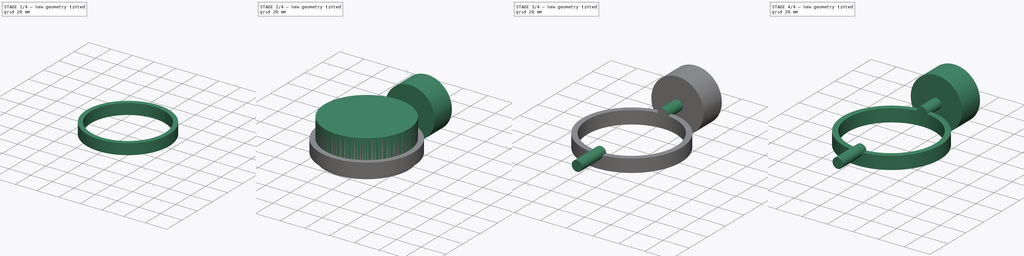
[diagram: build sequence overview — one tinted view per stage of 4, left to right]
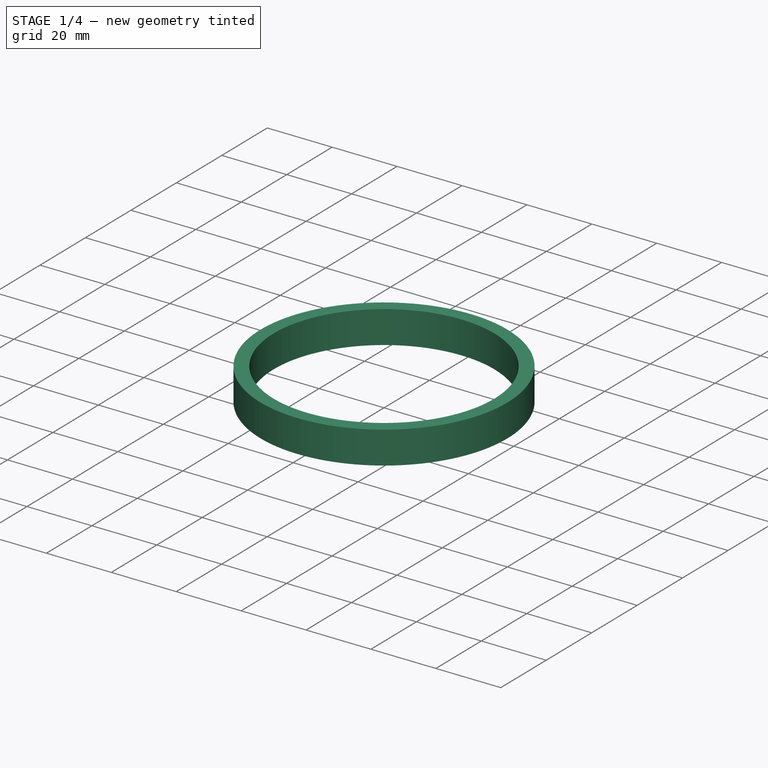
[diagram: stage 1 of 4 — iso view after this stage's code; geometry added in this stage tinted green]
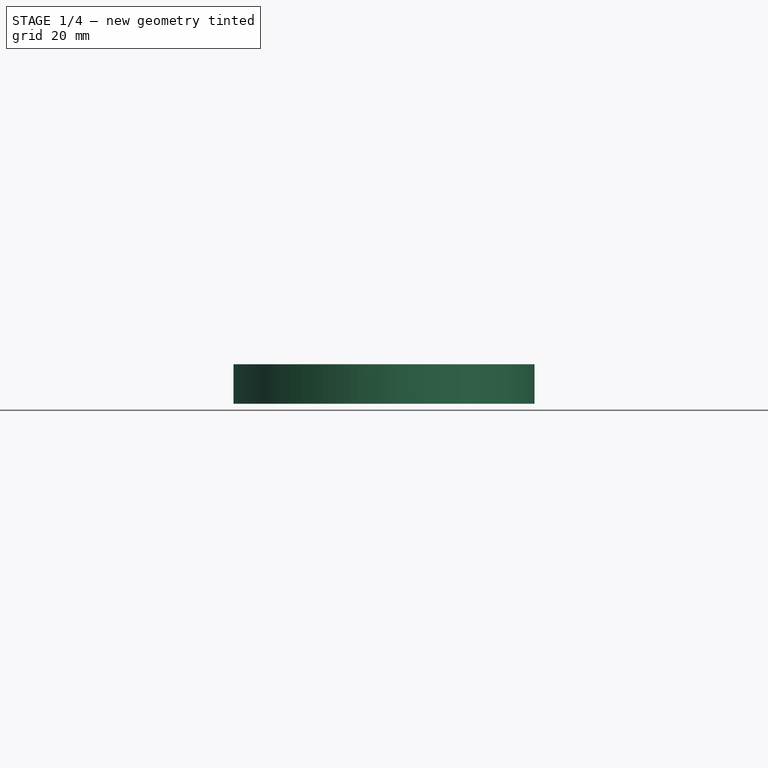
[diagram: stage 1 of 4 — front view after this stage's code; geometry added in this stage tinted green]
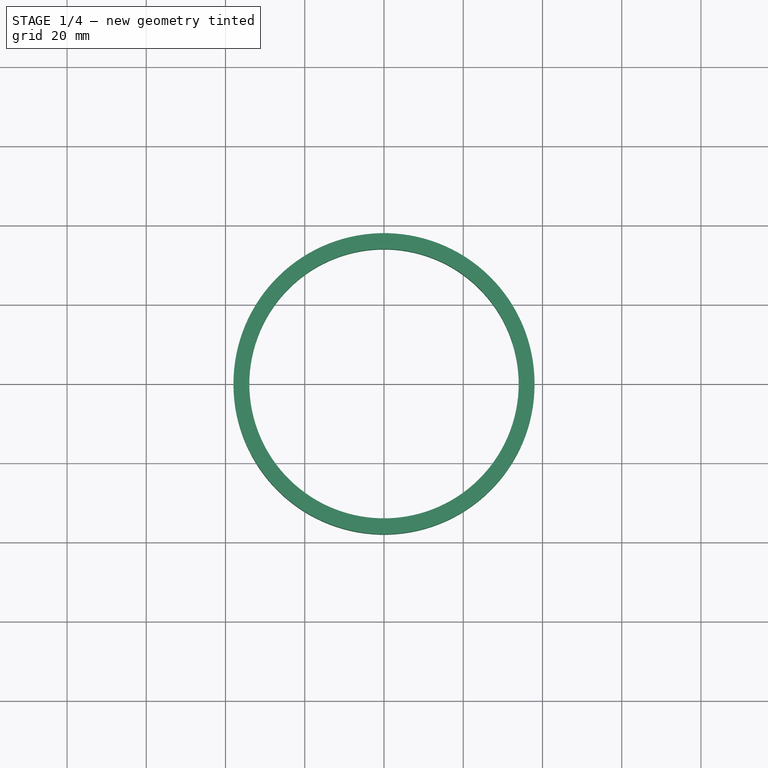
[diagram: stage 1 of 4 — top view after this stage's code; geometry added in this stage tinted green]
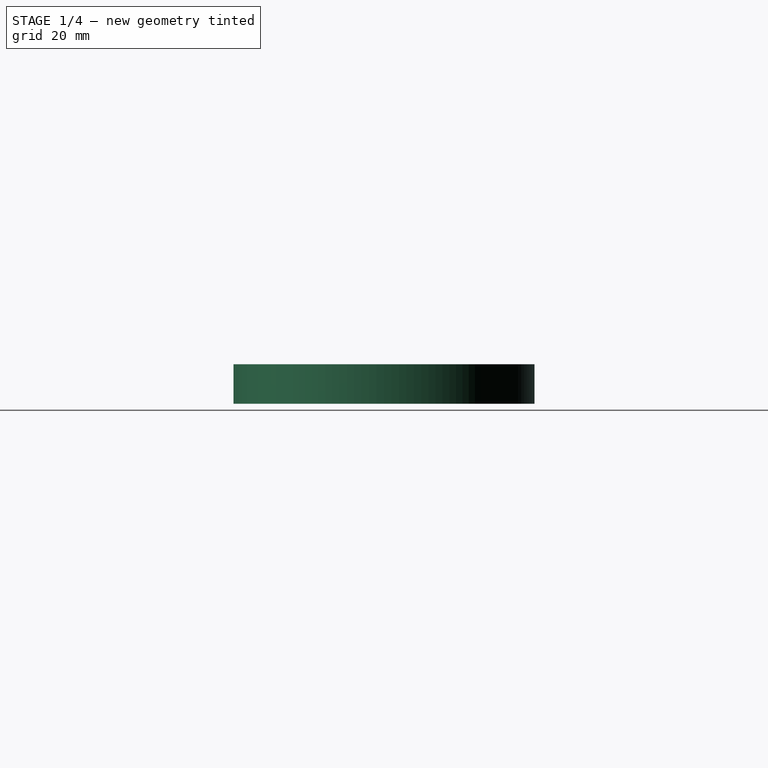
[diagram: stage 1 of 4 — right view after this stage's code; geometry added in this stage tinted green]
FCSTD DOCUMENT  (FreeCAD 0.20R29177 +233 (Git))
Label: v2-proyecto-cupholder-1-anillo
License: Creative Commons Attribution-ShareAlike
LicenseURL: http://creativecommons.org/licenses/by-sa/4.0/
objects: Part::Cylinder×4, Part::Cut×3, Part::MultiFuse×2, Sketcher::SketchObject×1, PartDesign::Body×1, Part::Revolution×1, Part::Feature×1, Part::Extrusion×1
note: 14 computed .brp shape members not serialized (recipe doc carries the construction recipe); baked Part::Feature solids carry a one-line shape summary decoded from their .brp

FEATURE [Sketcher::SketchObject] Sketch
  FullyConstrained = true
  MapMode = 5
  Placement = pos=(0,0,0) rot=(1,0,0;1.5708rad)
  Support = -> [XZ_Plane]
  sketch-geometry (6):
    g0: LineSegment StartX=0 StartY=1 StartZ=0 EndX=34 EndY=1 EndZ=0
    g1: LineSegment StartX=34 StartY=1 StartZ=0 EndX=34 EndY=70 EndZ=0
    g2: LineSegment StartX=34 StartY=70 StartZ=0 EndX=38 EndY=70 EndZ=0
    g3: LineSegment StartX=38 StartY=70 StartZ=0 EndX=38 EndY=0 EndZ=0
    g4: LineSegment StartX=38 StartY=0 StartZ=0 EndX=0 EndY=0 EndZ=0
    g5: LineSegment StartX=0 StartY=0 StartZ=0 EndX=0 EndY=1 EndZ=0
  constraints (17):
    c: PointOnObject(g0,g-2)
    c: Horizontal(g0)
    c: Coincident(g0,g1)
    c: Coincident(g1,g2)
    c: Horizontal(g2)
    c: Coincident(g2,g3)
    c: Coincident(g3,g4)
    c: Horizontal(g4)
    c: Coincident(g4,g5)
    c: Coincident(g5,g0)
    c: DistanceY(g5,g5) = 1
    c: Coincident(g4,g-1)
    c: DistanceX(g0,g0) = 34
    c: DistanceX(g4,g4) = 38
    c: Parallel(g1,g3)
    c: DistanceX(g-1,g1) = 34
    c: DistanceY(g-1,g2) = 70
FEATURE [PartDesign::Body] Body  label="vaso"
  Group = -> [Sketch]
  Origin = -> Origin
FEATURE [Part::Revolution] Revolve
  Angle = 360
  Axis = (0,0,1)
  Base = (0,0,0)
  FaceMakerClass = Part::FaceMakerBullseye
  Solid = true
  Source = -> Sketch
  Symmetric = false
FEATURE [Part::Cylinder] Cylinder
  Angle = 360
  AttacherType = Attacher::AttachEngine3D
  FirstAngle = 0
  Height = 60
  Radius = 46
  SecondAngle = 0
FEATURE [Part::Cut] Cut002
  Base = -> Revolve
  Refine = true
  Tool = -> Cylinder
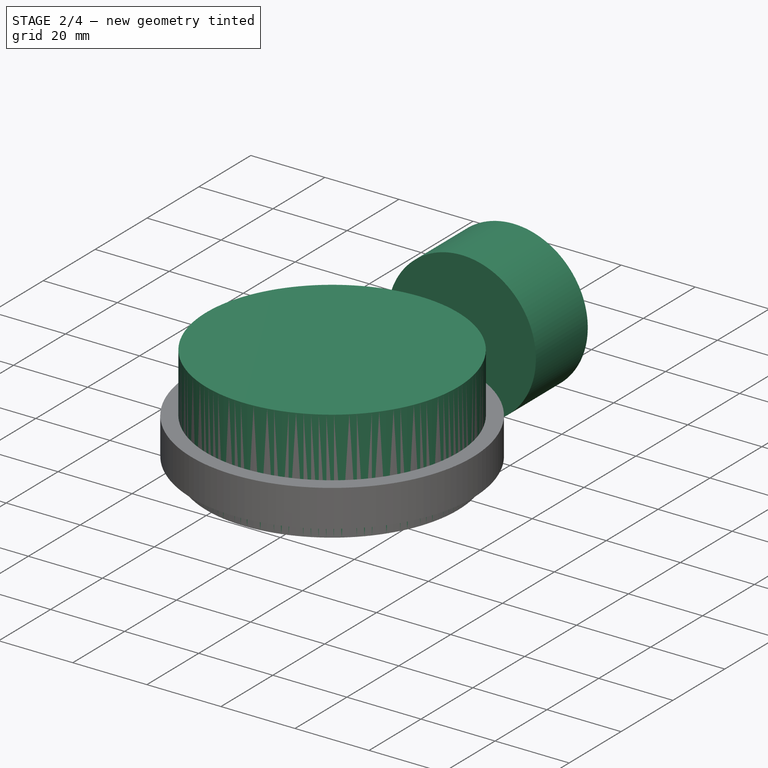
[diagram: stage 2 of 4 — iso view after this stage's code; geometry added in this stage tinted green]
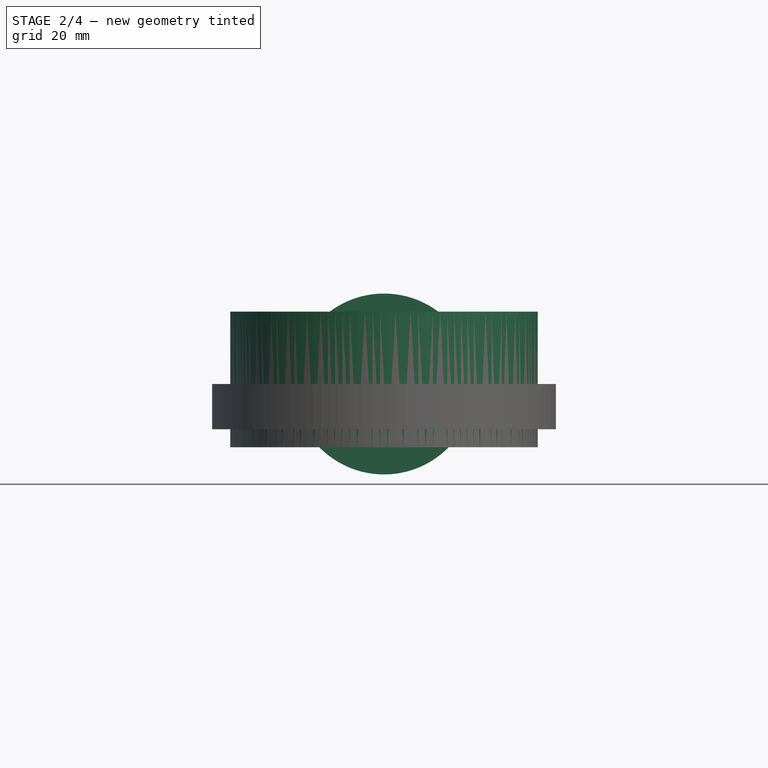
[diagram: stage 2 of 4 — front view after this stage's code; geometry added in this stage tinted green]
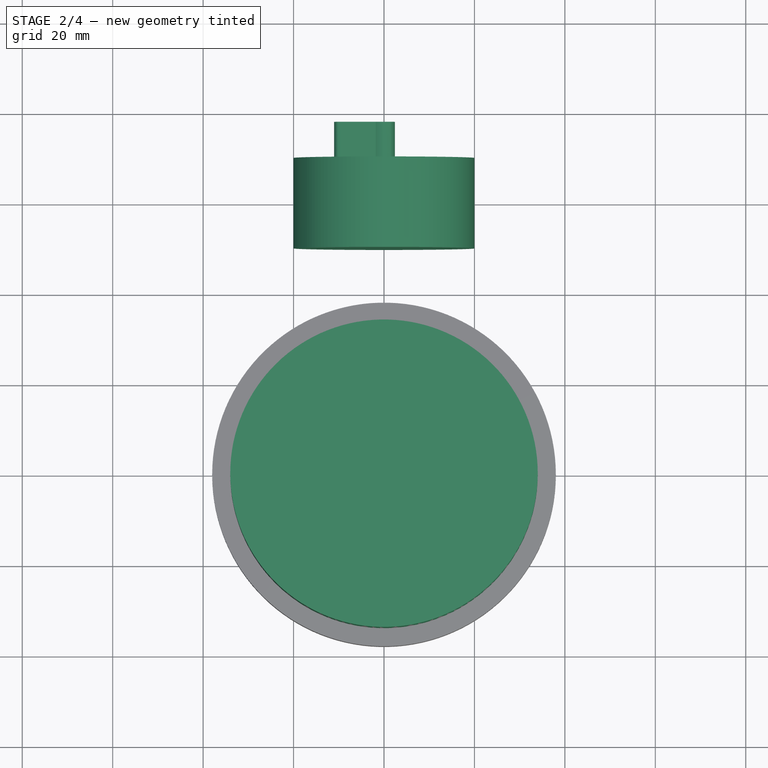
[diagram: stage 2 of 4 — top view after this stage's code; geometry added in this stage tinted green]
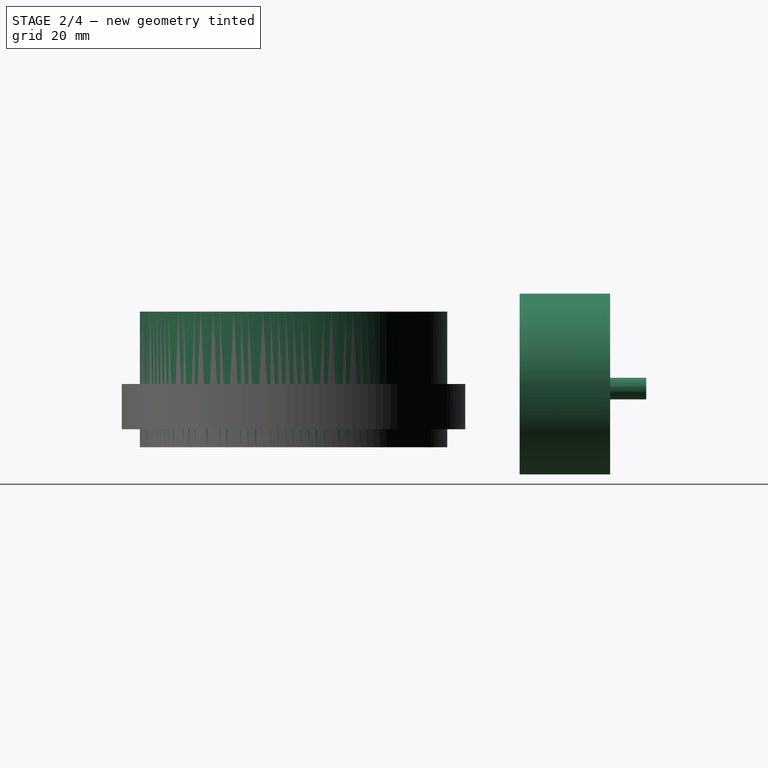
[diagram: stage 2 of 4 — right view after this stage's code; geometry added in this stage tinted green]
FEATURE [Part::Cylinder] Cylinder004
  Angle = 360
  AttacherType = Attacher::AttachEngine3D
  FirstAngle = 0
  Height = 30
  Placement = pos=(0,0,56) rot=(0,0,1;0rad)
  Radius = 34
  SecondAngle = 0
FEATURE [Part::Cylinder] Cylinder005
  Angle = 360
  AttacherType = Attacher::AttachEngine3D
  FirstAngle = 0
  Height = 20
  Placement = pos=(0,70,70) rot=(1,0,0;1.5708rad)
  Radius = 20
  SecondAngle = 0
FEATURE [Part::Feature] path2399
  Placement = pos=(0,342,81) rot=(0,0,1;0rad)
  shape: bbox 13.5 x 4.857 x 2e-07 mm, 0 faces, 0 solids (baked)
FEATURE [Part::Extrusion] Extrude
  Base = -> path2399
  Dir = (0,0,1)
  DirMode = 2
  FaceMakerClass = Part::FaceMakerBullseye
  LengthFwd = 10
  LengthRev = 0
  Placement = pos=(-13,-13,406) rot=(1,0,0;4.71239rad)
  Solid = true
  Symmetric = false
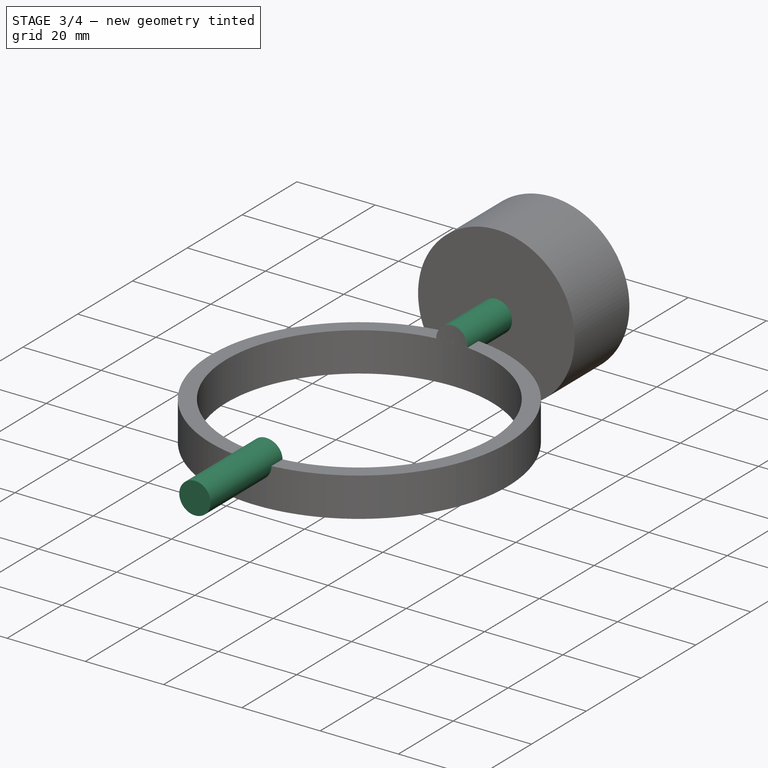
[diagram: stage 3 of 4 — iso view after this stage's code; geometry added in this stage tinted green]
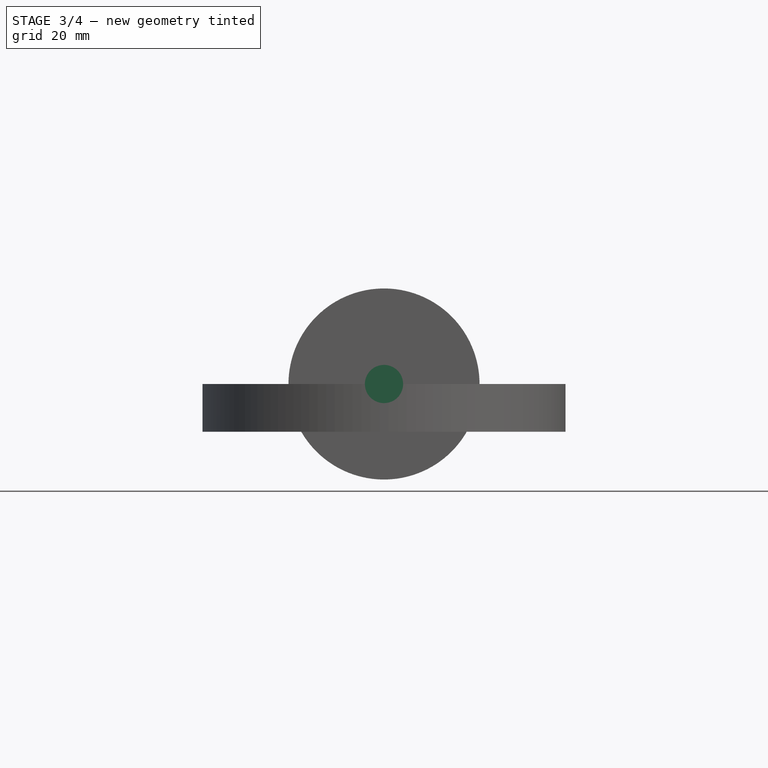
[diagram: stage 3 of 4 — front view after this stage's code; geometry added in this stage tinted green]
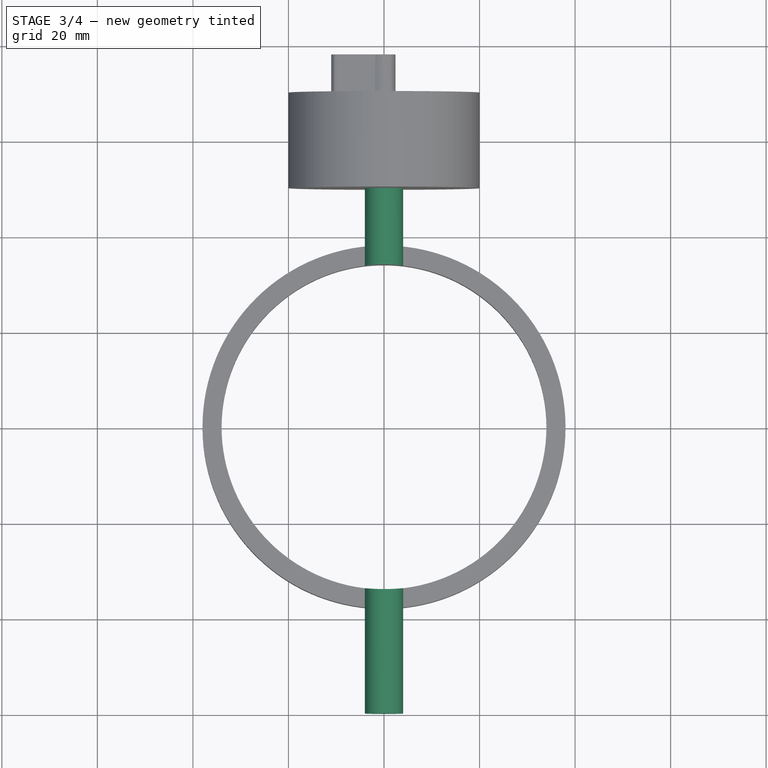
[diagram: stage 3 of 4 — top view after this stage's code; geometry added in this stage tinted green]
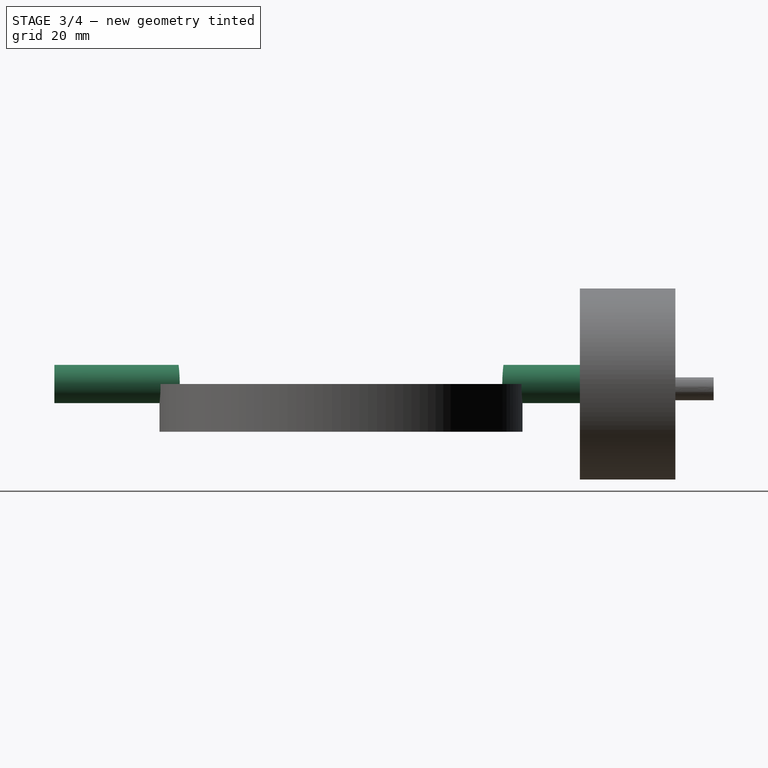
[diagram: stage 3 of 4 — right view after this stage's code; geometry added in this stage tinted green]
FEATURE [Part::Cylinder] Cylinder003
  Angle = 360
  AttacherType = Attacher::AttachEngine3D
  FirstAngle = 0
  Height = 120
  Placement = pos=(0,60,70) rot=(1,0,0;1.5708rad)
  Radius = 4
  SecondAngle = 0
FEATURE [Part::Cut] Cut
  Base = -> Cylinder003
  Refine = true
  Tool = -> Cylinder004
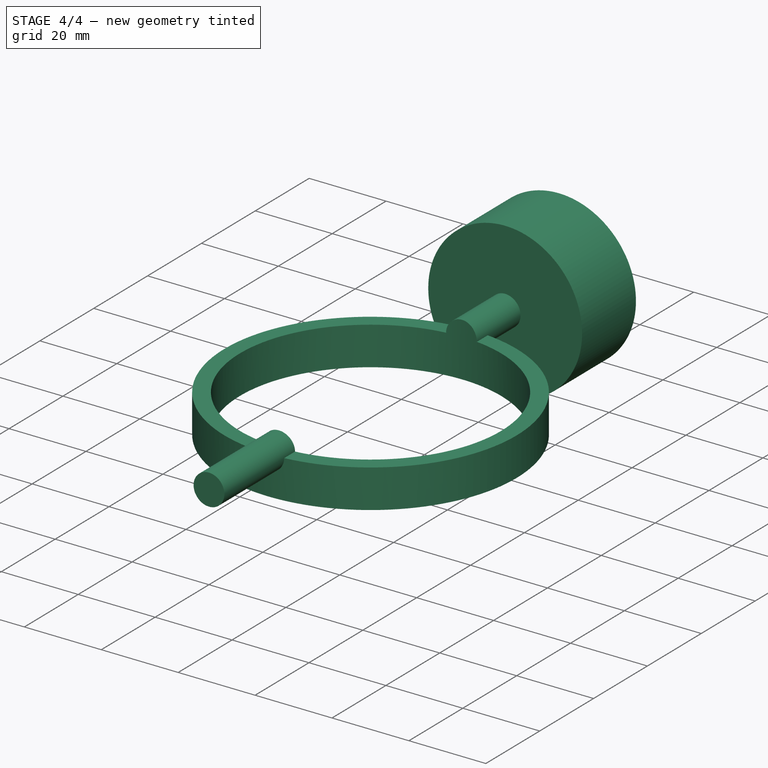
[diagram: stage 4 of 4 — iso view after this stage's code; geometry added in this stage tinted green]
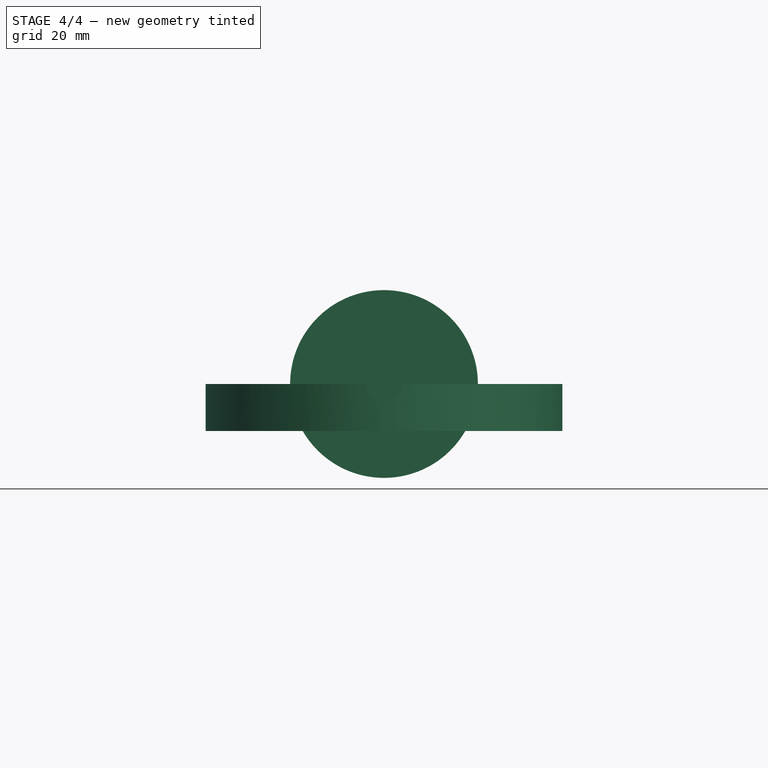
[diagram: stage 4 of 4 — front view after this stage's code; geometry added in this stage tinted green]
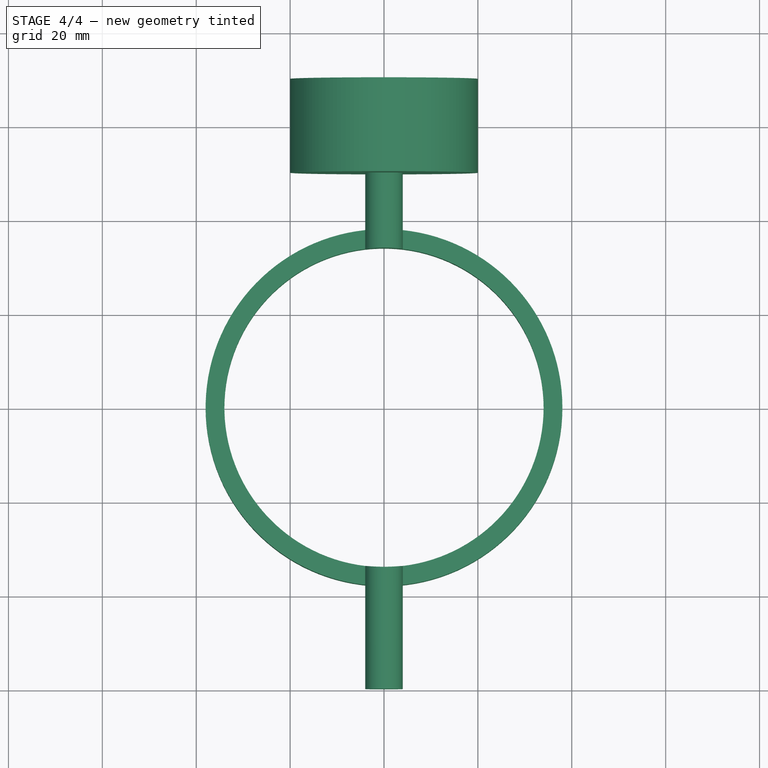
[diagram: stage 4 of 4 — top view after this stage's code; geometry added in this stage tinted green]
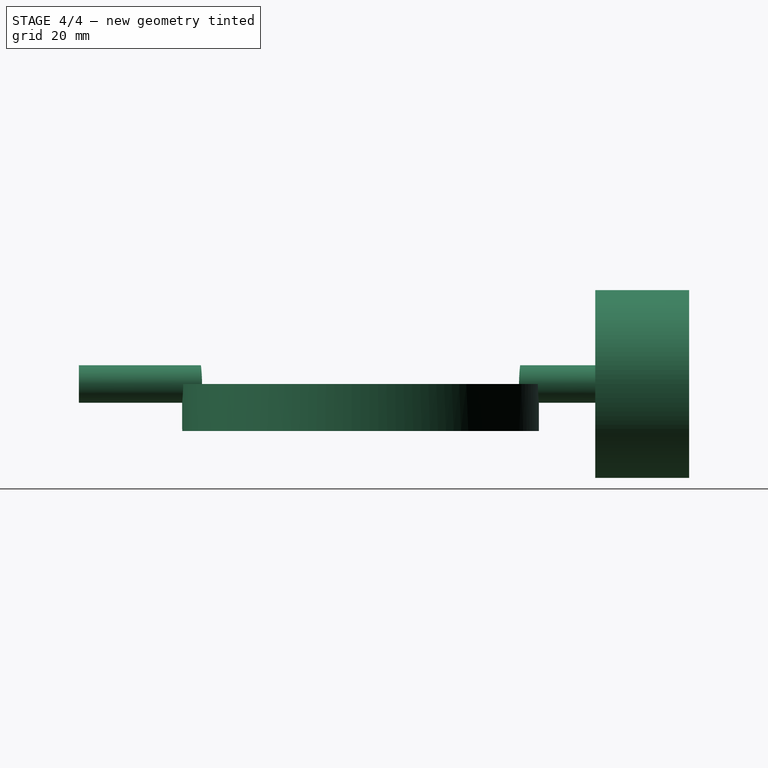
[diagram: stage 4 of 4 — right view after this stage's code; geometry added in this stage tinted green]
FEATURE [Part::MultiFuse] Fusion
  Refine = true
  Shapes = -> [Cylinder005,Cut]
FEATURE [Part::Cut] Cut001
  Base = -> Fusion
  Refine = true
  Tool = -> Extrude
FEATURE [Part::MultiFuse] Fusion001
  Refine = true
  Shapes = -> [Cut002,Cut001]
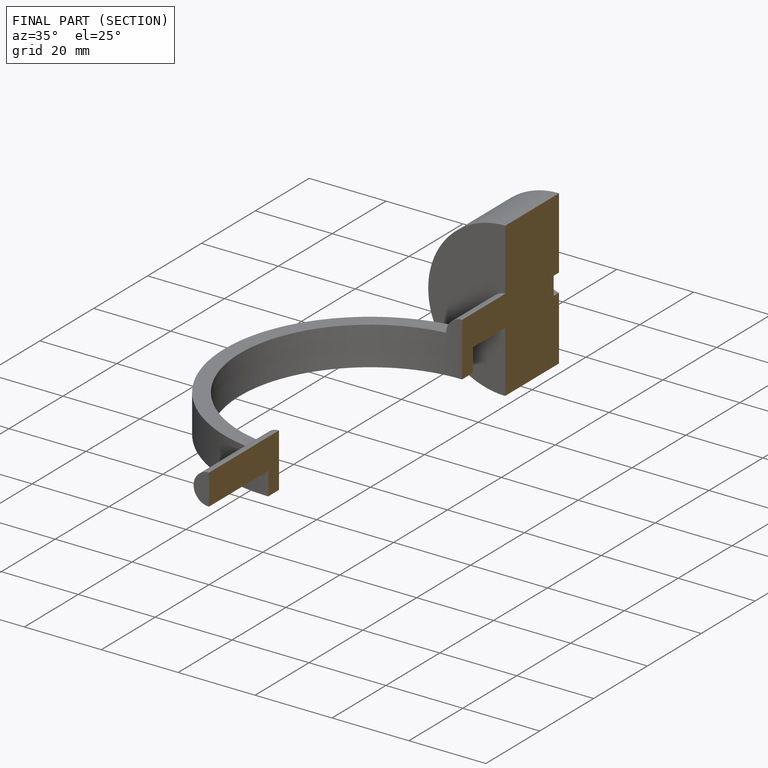
[diagram: finished part — half-section view (interior)]
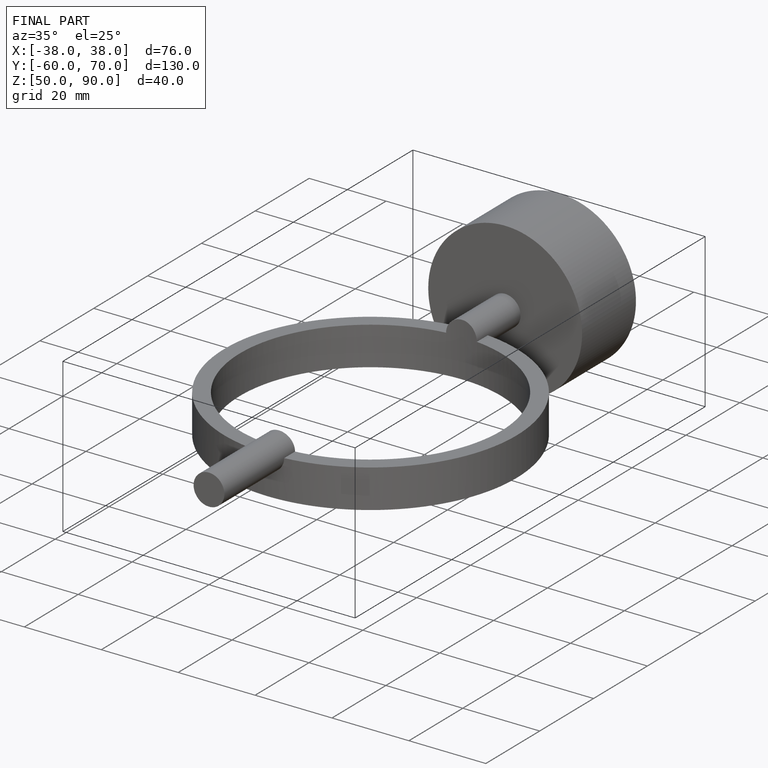
[diagram: finished part — iso view with bounding-box wireframe]
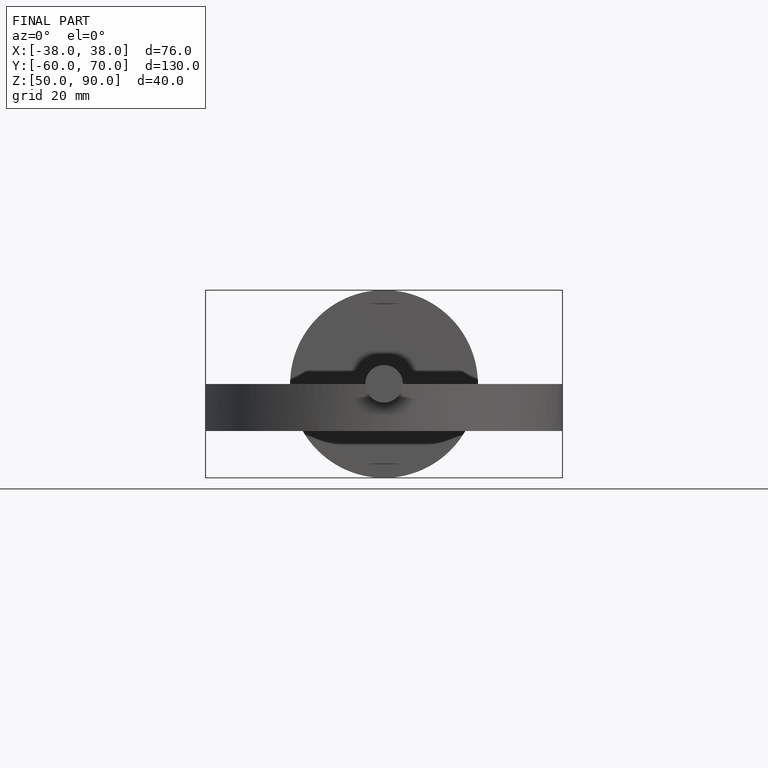
[diagram: finished part — front view with bounding-box wireframe]
